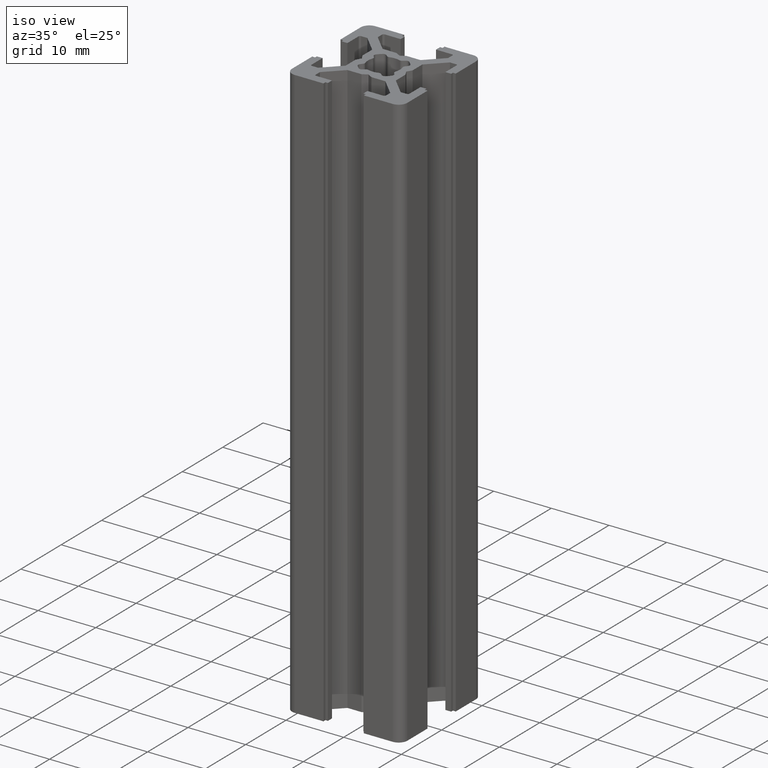
[diagram: clean part render]
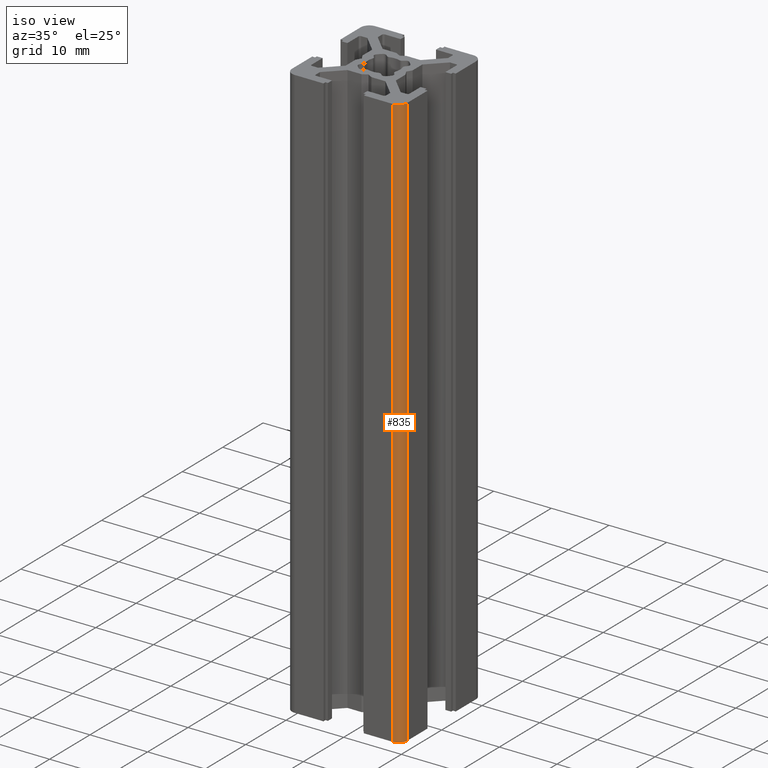
[diagram: same view with one face highlighted and labeled with its STEP entity id]
A machine part, iso view. The second image highlights one B-rep face of the part: STEP entity #835.
In plain terms, the highlighted cylindrical surface (edge-blend (fillet) strip) has radius 1.5 mm, axis along (-0, -0, -1).
Its self-contained STEP definition (entity closure, byte-faithful):
#796 = ORIENTED_EDGE ( 'NONE', *, *, #829, .T. ) ;
#801 = EDGE_LOOP ( 'NONE', ( #836, #834, #879, #796 ) ) ;
#829 = EDGE_CURVE ( 'NONE', #1465, #4160, #2914, .T. ) ;
#833 = EDGE_CURVE ( 'NONE', #1471, #4155, #2921, .T. ) ;
#834 = ORIENTED_EDGE ( 'NONE', *, *, #833, .F. ) ;
#835 = ADVANCED_FACE ( 'NONE', ( #2928 ), #2902, .T. ) ;
#836 = ORIENTED_EDGE ( 'NONE', *, *, #4150, .T. ) ;
#879 = ORIENTED_EDGE ( 'NONE', *, *, #1477, .F. ) ;
#1465 = VERTEX_POINT ( 'NONE', #3866 ) ;
#1471 = VERTEX_POINT ( 'NONE', #3864 ) ;
#1477 = EDGE_CURVE ( 'NONE', #1465, #1471, #3851, .T. ) ;
#2888 = CARTESIAN_POINT ( 'NONE',  ( 10.00000000000000000, -8.500000000000000000, 100.0000000000000000 ) ) ;
#2902 = CYLINDRICAL_SURFACE ( 'NONE', #2912, 1.499999999999999600 ) ;
#2903 = DIRECTION ( 'NONE',  ( -0.0000000000000000000, -0.0000000000000000000, -1.000000000000000000 ) ) ;
#2904 = VECTOR ( 'NONE', #2903, 1000.000000000000000 ) ;
#2905 = DIRECTION ( 'NONE',  ( -0.0000000000000000000, -0.0000000000000000000, -1.000000000000000000 ) ) ;
#2906 = VECTOR ( 'NONE', #2905, 1000.000000000000000 ) ;
#2907 = CARTESIAN_POINT ( 'NONE',  ( 8.500000000000000000, -10.00000000000000000, 100.0000000000000000 ) ) ;
#2912 = AXIS2_PLACEMENT_3D ( 'NONE', #2915, #2956, #2954 ) ;
#2914 = LINE ( 'NONE', #2907, #2906 ) ;
#2915 = CARTESIAN_POINT ( 'NONE',  ( 8.500000000000000000, -8.500000000000000000, 100.0000000000000000 ) ) ;
#2921 = LINE ( 'NONE', #2888, #2904 ) ;
#2928 = FACE_OUTER_BOUND ( 'NONE', #801, .T. ) ;
#2954 = DIRECTION ( 'NONE',  ( -1.000000000000000000, 0.0000000000000000000, 0.0000000000000000000 ) ) ;
#2956 = DIRECTION ( 'NONE',  ( -0.0000000000000000000, -0.0000000000000000000, -1.000000000000000000 ) ) ;
#3844 = CARTESIAN_POINT ( 'NONE',  ( 8.500000000000000000, -8.500000000000000000, 100.0000000000000000 ) ) ;
#3851 = CIRCLE ( 'NONE', #3899, 1.499999999999999600 ) ;
#3864 = CARTESIAN_POINT ( 'NONE',  ( 10.00000000000000000, -8.500000000000000000, 100.0000000000000000 ) ) ;
#3866 = CARTESIAN_POINT ( 'NONE',  ( 8.500000000000000000, -10.00000000000000000, 100.0000000000000000 ) ) ;
#3890 = DIRECTION ( 'NONE',  ( 1.000000000000000000, 0.0000000000000000000, 0.0000000000000000000 ) ) ;
#3891 = DIRECTION ( 'NONE',  ( 0.0000000000000000000, 0.0000000000000000000, 1.000000000000000000 ) ) ;
#3899 = AXIS2_PLACEMENT_3D ( 'NONE', #3844, #3891, #3890 ) ;
#3994 = CARTESIAN_POINT ( 'NONE',  ( 8.500000000000000000, -10.00000000000000000, 0.0000000000000000000 ) ) ;
#3996 = CARTESIAN_POINT ( 'NONE',  ( 10.00000000000000000, -8.500000000000000000, 0.0000000000000000000 ) ) ;
#4003 = DIRECTION ( 'NONE',  ( 1.000000000000000000, 0.0000000000000000000, 0.0000000000000000000 ) ) ;
#4004 = DIRECTION ( 'NONE',  ( 0.0000000000000000000, 0.0000000000000000000, 1.000000000000000000 ) ) ;
#4005 = CARTESIAN_POINT ( 'NONE',  ( 8.500000000000000000, -8.500000000000000000, 0.0000000000000000000 ) ) ;
#4013 = CIRCLE ( 'NONE', #4015, 1.499999999999999600 ) ;
#4015 = AXIS2_PLACEMENT_3D ( 'NONE', #4005, #4004, #4003 ) ;
#4150 = EDGE_CURVE ( 'NONE', #4160, #4155, #4013, .T. ) ;
#4155 = VERTEX_POINT ( 'NONE', #3996 ) ;
#4160 = VERTEX_POINT ( 'NONE', #3994 ) ;